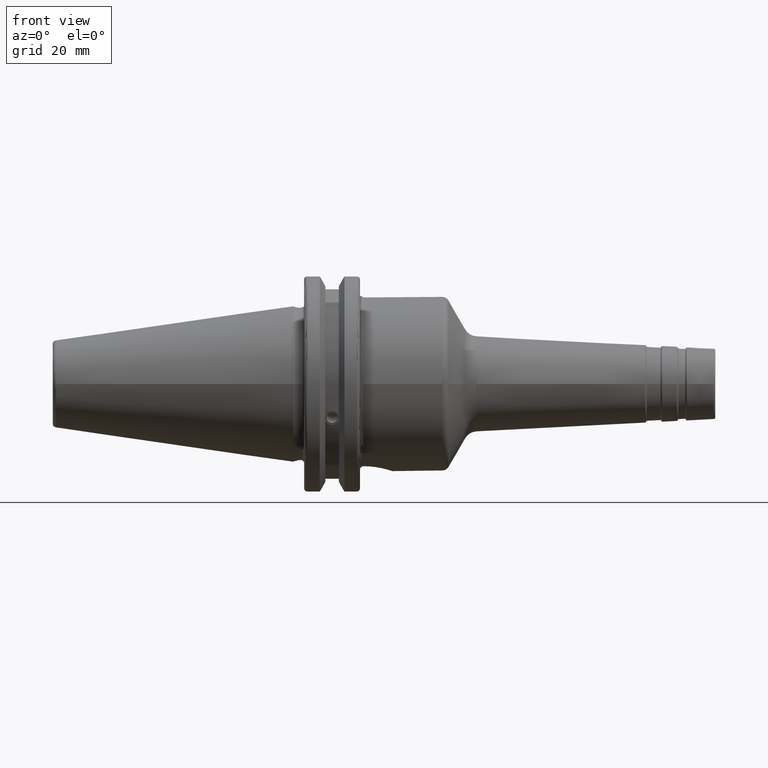
[diagram: clean part render]
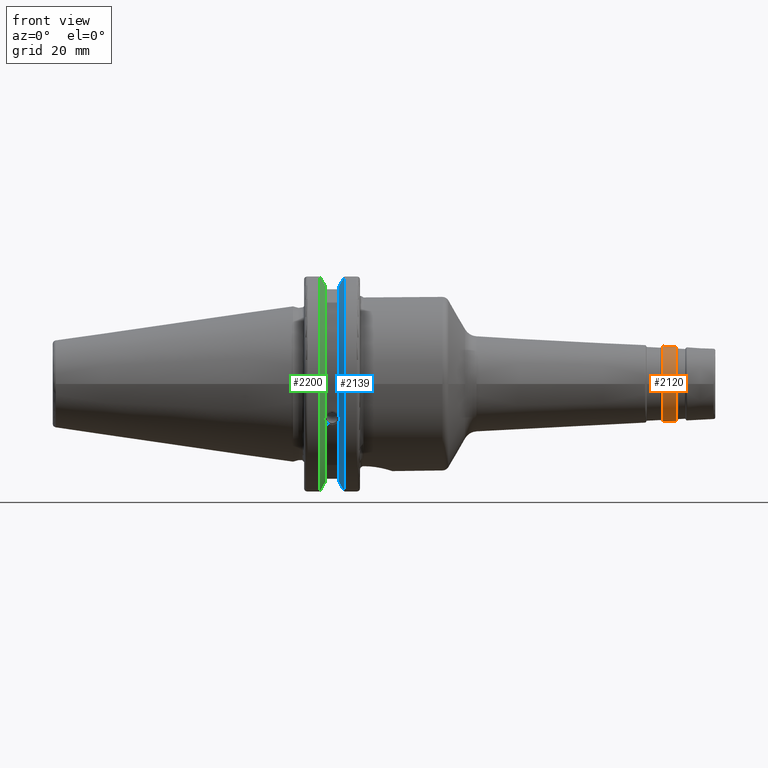
[diagram: same view with three faces highlighted in distinct colors, each labeled with its STEP entity id]
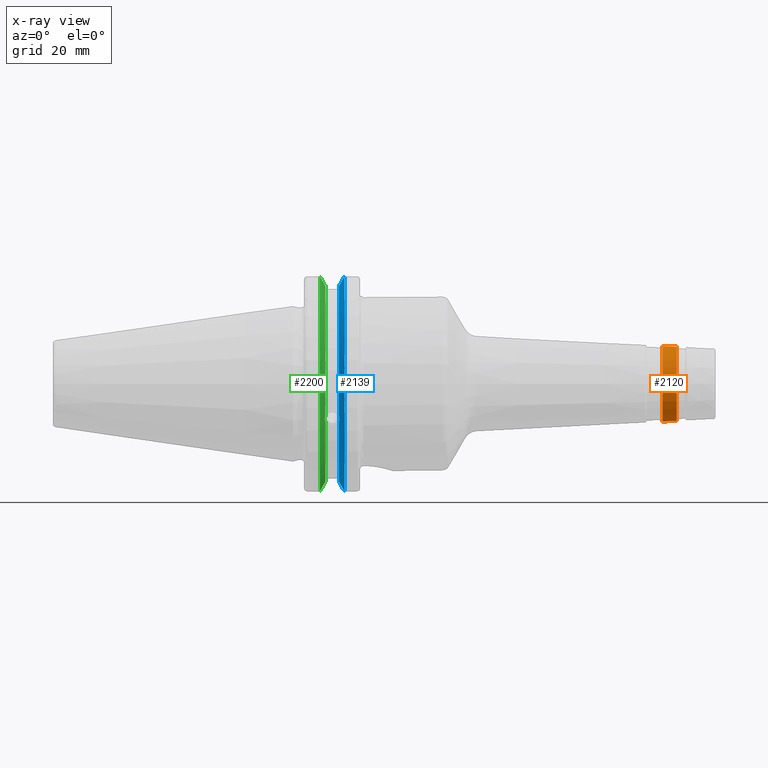
[diagram: x-ray of the same camera — body ghosted, the three highlighted faces saturated]
A machine part, front view with three faces highlighted in distinct colors.
The next image is the same camera in x-ray (body ghosted, the three faces saturated) — at least one of them is partly hidden behind the body in this view.
Their STEP definitions:

[orange] entity #2120 — the highlighted conical surface has half-angle 3 deg.
#209=FACE_OUTER_BOUND('',#320,.T.);
#320=EDGE_LOOP('',(#1571,#1572,#1573,#1574,#1575,#1576,#1577,#1578));
#431=LINE('',#3536,#532);
#532=VECTOR('',#2769,10.6796065213774);
#699=CIRCLE('',#2331,10.5759611913527);
#700=CIRCLE('',#2332,10.5759611913527);
#701=CIRCLE('',#2333,10.5759611913527);
#702=CIRCLE('',#2335,10.7832518514021);
#703=CIRCLE('',#2336,10.7832518514021);
#704=CIRCLE('',#2337,10.7832518514021);
#872=VERTEX_POINT('',#3527);
#873=VERTEX_POINT('',#3529);
#874=VERTEX_POINT('',#3531);
#875=VERTEX_POINT('',#3535);
#876=VERTEX_POINT('',#3537);
#877=VERTEX_POINT('',#3539);
#1141=EDGE_CURVE('',#872,#873,#699,.T.);
#1142=EDGE_CURVE('',#873,#874,#700,.T.);
#1143=EDGE_CURVE('',#874,#872,#701,.T.);
#1144=EDGE_CURVE('',#873,#875,#431,.T.);
#1145=EDGE_CURVE('',#876,#875,#702,.T.);
#1146=EDGE_CURVE('',#877,#876,#703,.T.);
#1147=EDGE_CURVE('',#875,#877,#704,.T.);
#1571=ORIENTED_EDGE('',*,*,#1143,.F.);
#1572=ORIENTED_EDGE('',*,*,#1142,.F.);
#1573=ORIENTED_EDGE('',*,*,#1144,.T.);
#1574=ORIENTED_EDGE('',*,*,#1145,.F.);
#1575=ORIENTED_EDGE('',*,*,#1146,.F.);
#1576=ORIENTED_EDGE('',*,*,#1147,.F.);
#1577=ORIENTED_EDGE('',*,*,#1144,.F.);
#1578=ORIENTED_EDGE('',*,*,#1141,.F.);
#2082=CONICAL_SURFACE('',#2334,10.6796065213774,0.0523598775598295);
#2120=ADVANCED_FACE('',(#209),#2082,.T.);
#2331=AXIS2_PLACEMENT_3D('',#3530,#2761,#2762);
#2332=AXIS2_PLACEMENT_3D('',#3532,#2763,#2764);
#2333=AXIS2_PLACEMENT_3D('',#3533,#2765,#2766);
#2334=AXIS2_PLACEMENT_3D('',#3534,#2767,#2768);
#2335=AXIS2_PLACEMENT_3D('',#3538,#2770,#2771);
#2336=AXIS2_PLACEMENT_3D('',#3540,#2772,#2773);
#2337=AXIS2_PLACEMENT_3D('',#3541,#2774,#2775);
#2761=DIRECTION('center_axis',(1.,0.,0.));
#2762=DIRECTION('ref_axis',(0.,-1.,3.06161699786838E-17));
#2763=DIRECTION('center_axis',(1.,0.,0.));
#2764=DIRECTION('ref_axis',(0.,-1.,3.06161699786838E-17));
#2765=DIRECTION('center_axis',(1.,0.,0.));
#2766=DIRECTION('ref_axis',(0.,-1.,3.06161699786838E-17));
#2767=DIRECTION('center_axis',(-1.,0.,0.));
#2768=DIRECTION('ref_axis',(0.,1.,0.));
#2769=DIRECTION('',(-0.998629534754574,-0.0523359562429434,-6.40930612932366E-18));
#2770=DIRECTION('center_axis',(-1.,0.,0.));
#2771=DIRECTION('ref_axis',(0.,-1.,3.06161699786838E-17));
#2772=DIRECTION('center_axis',(-1.,0.,0.));
#2773=DIRECTION('ref_axis',(0.,-1.,3.06161699786838E-17));
#2774=DIRECTION('center_axis',(-1.,0.,0.));
#2775=DIRECTION('ref_axis',(0.,-1.,3.06161699786838E-17));
#3527=CARTESIAN_POINT('',(109.010005780972,-1.29518170208967E-15,10.5759611913527));
#3529=CARTESIAN_POINT('',(109.010005780972,-10.5759611913527,-1.29518170208967E-15));
#3530=CARTESIAN_POINT('Origin',(109.010005780972,0.,-1.61897712761209E-15));
#3531=CARTESIAN_POINT('',(109.010005780972,10.5759611913527,-6.47590851044836E-16));
#3532=CARTESIAN_POINT('Origin',(109.010005780972,0.,-1.61897712761209E-15));
#3533=CARTESIAN_POINT('Origin',(109.010005780972,0.,-1.61897712761209E-15));
#3534=CARTESIAN_POINT('Origin',(107.032335071726,0.,0.));
#3535=CARTESIAN_POINT('',(105.05466436248,-10.7832518514021,-1.32056748642194E-15));
#3536=CARTESIAN_POINT('',(107.032335071726,-10.6796065213774,-1.30787459425581E-15));
#3537=CARTESIAN_POINT('',(105.05466436248,10.7832518514021,-3.30141871605485E-15));
#3538=CARTESIAN_POINT('Origin',(105.05466436248,0.,-1.65070935802742E-15));
#3539=CARTESIAN_POINT('',(105.05466436248,-1.32056748642194E-15,10.7832518514021));
#3540=CARTESIAN_POINT('Origin',(105.05466436248,0.,-1.65070935802742E-15));
#3541=CARTESIAN_POINT('Origin',(105.05466436248,0.,-1.65070935802742E-15));

[blue] entity #2139 — the highlighted conical surface has half-angle 60 deg.
#15=(
BOUNDED_CURVE()
B_SPLINE_CURVE(2,(#3750,#3751,#3752),.UNSPECIFIED.,.F.,.F.)
B_SPLINE_CURVE_WITH_KNOTS((3,3),(0.,0.276549142795512),.UNSPECIFIED.)
CURVE()
GEOMETRIC_REPRESENTATION_ITEM()
RATIONAL_B_SPLINE_CURVE((1.,1.00095203904184,1.00031614445102))
REPRESENTATION_ITEM('')
);
#16=(
BOUNDED_CURVE()
B_SPLINE_CURVE(2,(#3754,#3755,#3756),.UNSPECIFIED.,.F.,.F.)
B_SPLINE_CURVE_WITH_KNOTS((3,3),(0.,0.0639048713675663),.UNSPECIFIED.)
CURVE()
GEOMETRIC_REPRESENTATION_ITEM()
RATIONAL_B_SPLINE_CURVE((1.,1.00028444218286,1.00047644010578))
REPRESENTATION_ITEM('')
);
#17=(
BOUNDED_CURVE()
B_SPLINE_CURVE(2,(#3760,#3761,#3762),.UNSPECIFIED.,.F.,.F.)
B_SPLINE_CURVE_WITH_KNOTS((3,3),(0.329353533631206,0.393258405001023),
 .UNSPECIFIED.)
CURVE()
GEOMETRIC_REPRESENTATION_ITEM()
RATIONAL_B_SPLINE_CURVE((1.00047644010579,1.00028444218287,1.))
REPRESENTATION_ITEM('')
);
#18=(
BOUNDED_CURVE()
B_SPLINE_CURVE(2,(#3764,#3765,#3766),.UNSPECIFIED.,.F.,.F.)
B_SPLINE_CURVE_WITH_KNOTS((3,3),(0.0550586467393779,0.331607789535852),
 .UNSPECIFIED.)
CURVE()
GEOMETRIC_REPRESENTATION_ITEM()
RATIONAL_B_SPLINE_CURVE((1.00031614444922,1.00095203903643,1.))
REPRESENTATION_ITEM('')
);
#126=B_SPLINE_CURVE_WITH_KNOTS('',3,(#3652,#3653,#3654,#3655,#3656,#3657,
#3658,#3659),.UNSPECIFIED.,.F.,.F.,(4,2,2,4),(0.451995700189024,0.464547828547662,
0.504528771685167,0.544509714822672),.UNSPECIFIED.);
#130=B_SPLINE_CURVE_WITH_KNOTS('',3,(#3714,#3715,#3716,#3717,#3718,#3719,
#3720,#3721),.UNSPECIFIED.,.F.,.F.,(4,2,2,4),(0.544509714822672,0.584490657960177,
0.624471601097683,0.637023729456322),.UNSPECIFIED.);
#228=FACE_OUTER_BOUND('',#343,.T.);
#343=EDGE_LOOP('',(#1696,#1697,#1698,#1699,#1700,#1701,#1702,#1703,#1704));
#727=CIRCLE('',#2388,28.9593772964944);
#728=CIRCLE('',#2389,31.75);
#729=CIRCLE('',#2390,28.9593772964944);
#906=VERTEX_POINT('',#3649);
#907=VERTEX_POINT('',#3651);
#914=VERTEX_POINT('',#3712);
#923=VERTEX_POINT('',#3747);
#924=VERTEX_POINT('',#3749);
#925=VERTEX_POINT('',#3753);
#926=VERTEX_POINT('',#3757);
#927=VERTEX_POINT('',#3759);
#928=VERTEX_POINT('',#3763);
#1188=EDGE_CURVE('',#907,#906,#126,.T.);
#1196=EDGE_CURVE('',#906,#914,#130,.T.);
#1208=EDGE_CURVE('',#914,#923,#727,.T.);
#1209=EDGE_CURVE('',#923,#924,#15,.T.);
#1210=EDGE_CURVE('',#925,#924,#16,.T.);
#1211=EDGE_CURVE('',#926,#925,#728,.T.);
#1212=EDGE_CURVE('',#927,#926,#17,.T.);
#1213=EDGE_CURVE('',#927,#928,#18,.T.);
#1214=EDGE_CURVE('',#928,#907,#729,.T.);
#1696=ORIENTED_EDGE('',*,*,#1188,.T.);
#1697=ORIENTED_EDGE('',*,*,#1196,.T.);
#1698=ORIENTED_EDGE('',*,*,#1208,.T.);
#1699=ORIENTED_EDGE('',*,*,#1209,.T.);
#1700=ORIENTED_EDGE('',*,*,#1210,.F.);
#1701=ORIENTED_EDGE('',*,*,#1211,.F.);
#1702=ORIENTED_EDGE('',*,*,#1212,.F.);
#1703=ORIENTED_EDGE('',*,*,#1213,.T.);
#1704=ORIENTED_EDGE('',*,*,#1214,.T.);
#2084=CONICAL_SURFACE('',#2387,30.3546886482472,1.0471975511966);
#2139=ADVANCED_FACE('',(#228),#2084,.T.);
#2387=AXIS2_PLACEMENT_3D('',#3746,#2895,#2896);
#2388=AXIS2_PLACEMENT_3D('',#3748,#2897,#2898);
#2389=AXIS2_PLACEMENT_3D('',#3758,#2899,#2900);
#2390=AXIS2_PLACEMENT_3D('',#3767,#2901,#2902);
#2895=DIRECTION('center_axis',(1.,0.,0.));
#2896=DIRECTION('ref_axis',(0.,-1.,-1.22464679914735E-16));
#2897=DIRECTION('center_axis',(1.,0.,0.));
#2898=DIRECTION('ref_axis',(0.,0.,-1.));
#2899=DIRECTION('center_axis',(1.,0.,0.));
#2900=DIRECTION('ref_axis',(0.,0.,-1.));
#2901=DIRECTION('center_axis',(1.,0.,0.));
#2902=DIRECTION('ref_axis',(0.,0.,-1.));
#3649=CARTESIAN_POINT('',(13.2341,-27.51401829017,-10.0142836826778));
#3651=CARTESIAN_POINT('',(13.0491,-27.4956274489925,-9.09043478536245));
#3652=CARTESIAN_POINT('Ctrl Pts',(13.0491,-27.4956274489925,-9.09043478536245));
#3653=CARTESIAN_POINT('Ctrl Pts',(13.0632204071996,-27.5087667900418,-9.12860597076217));
#3654=CARTESIAN_POINT('Ctrl Pts',(13.0766929817857,-27.5206055003513,-9.16696618806877));
#3655=CARTESIAN_POINT('Ctrl Pts',(13.130081441159,-27.5642934663232,-9.32791534028656));
#3656=CARTESIAN_POINT('Ctrl Pts',(13.1682197084175,-27.5867382255984,-9.46717946402648));
#3657=CARTESIAN_POINT('Ctrl Pts',(13.2204106446058,-27.5847569104122,-9.74771639360671));
#3658=CARTESIAN_POINT('Ctrl Pts',(13.2341,-27.559599249844,-9.8890510252165));
#3659=CARTESIAN_POINT('Ctrl Pts',(13.2341,-27.51401829017,-10.0142836826777));
#3712=CARTESIAN_POINT('',(13.0491,-26.9060914640648,-10.7101715919071));
#3714=CARTESIAN_POINT('Ctrl Pts',(13.2341,-27.51401829017,-10.0142836826777));
#3715=CARTESIAN_POINT('Ctrl Pts',(13.2341,-27.4684373304961,-10.139516340139));
#3716=CARTESIAN_POINT('Ctrl Pts',(13.2204106446058,-27.3968610665578,-10.2639559818059));
#3717=CARTESIAN_POINT('Ctrl Pts',(13.1682197084175,-27.2180531796526,-10.4801333026531));
#3718=CARTESIAN_POINT('Ctrl Pts',(13.130081441159,-27.1113422433189,-10.5723885976054));
#3719=CARTESIAN_POINT('Ctrl Pts',(13.0766929817857,-26.9744191989197,-10.6676007180673));
#3720=CARTESIAN_POINT('Ctrl Pts',(13.0632204071996,-26.9406927482839,-10.6893765730703));
#3721=CARTESIAN_POINT('Ctrl Pts',(13.0491,-26.9060914640648,-10.7101715919071));
#3746=CARTESIAN_POINT('Origin',(13.8546833845378,0.,0.));
#3747=CARTESIAN_POINT('',(13.0491,-8.19,-27.7771386827498));
#3748=CARTESIAN_POINT('Origin',(13.0491,0.,0.));
#3749=CARTESIAN_POINT('',(14.3815146964874,-8.19,-30.1755016258903));
#3750=CARTESIAN_POINT('Ctrl Pts',(13.0491,-8.19,-27.7771386827498));
#3751=CARTESIAN_POINT('Ctrl Pts',(13.68773643849,-8.19,-28.9303689539956));
#3752=CARTESIAN_POINT('Ctrl Pts',(14.3815146964874,-8.19,-30.1755016258903));
#3753=CARTESIAN_POINT('',(14.6602667690756,-8.67204822802686,-30.5427254764662));
#3754=CARTESIAN_POINT('Ctrl Pts',(14.6602667690756,-8.67204822802687,-30.5427254764662));
#3755=CARTESIAN_POINT('Ctrl Pts',(14.5192085187837,-8.42917748262644,-30.357706789263));
#3756=CARTESIAN_POINT('Ctrl Pts',(14.3815146964874,-8.19,-30.1755016258903));
#3757=CARTESIAN_POINT('',(14.6602667690756,-8.67204822802685,30.5427254764662));
#3758=CARTESIAN_POINT('Origin',(14.6602667690756,0.,0.));
#3759=CARTESIAN_POINT('',(14.3815146964874,-8.19,30.1755016258903));
#3760=CARTESIAN_POINT('Ctrl Pts',(14.3815146964874,-8.19,30.1755016258903));
#3761=CARTESIAN_POINT('Ctrl Pts',(14.5192085187884,-8.42917748263465,30.3577067892692));
#3762=CARTESIAN_POINT('Ctrl Pts',(14.6602667690756,-8.67204822802686,30.5427254764662));
#3763=CARTESIAN_POINT('',(13.0491,-8.19,27.7771386827498));
#3764=CARTESIAN_POINT('Ctrl Pts',(14.3815146964874,-8.19,30.1755016258903));
#3765=CARTESIAN_POINT('Ctrl Pts',(13.687736438474,-8.19,28.9303689539668));
#3766=CARTESIAN_POINT('Ctrl Pts',(13.0491,-8.19,27.7771386827498));
#3767=CARTESIAN_POINT('Origin',(13.0491,0.,0.));

[green] entity #2200 — the highlighted conical surface has half-angle 60 deg.
#25=(
BOUNDED_CURVE()
B_SPLINE_CURVE(2,(#4089,#4090,#4091),.UNSPECIFIED.,.F.,.F.)
B_SPLINE_CURVE_WITH_KNOTS((3,3),(0.,0.276549142796136),.UNSPECIFIED.)
CURVE()
GEOMETRIC_REPRESENTATION_ITEM()
RATIONAL_B_SPLINE_CURVE((1.,1.00095203903316,1.00031614444813))
REPRESENTATION_ITEM('')
);
#26=(
BOUNDED_CURVE()
B_SPLINE_CURVE(2,(#4101,#4102,#4103),.UNSPECIFIED.,.F.,.F.)
B_SPLINE_CURVE_WITH_KNOTS((3,3),(0.0550586467392022,0.33160778953585),
 .UNSPECIFIED.)
CURVE()
GEOMETRIC_REPRESENTATION_ITEM()
RATIONAL_B_SPLINE_CURVE((1.00031614445148,1.00095203904325,1.))
REPRESENTATION_ITEM('')
);
#27=(
BOUNDED_CURVE()
B_SPLINE_CURVE(2,(#4136,#4137,#4138),.UNSPECIFIED.,.F.,.F.)
B_SPLINE_CURVE_WITH_KNOTS((3,3),(0.,0.0639048713676282),.UNSPECIFIED.)
CURVE()
GEOMETRIC_REPRESENTATION_ITEM()
RATIONAL_B_SPLINE_CURVE((1.,1.00028444218284,1.00047644010574))
REPRESENTATION_ITEM('')
);
#28=(
BOUNDED_CURVE()
B_SPLINE_CURVE(2,(#4144,#4145,#4146),.UNSPECIFIED.,.F.,.F.)
B_SPLINE_CURVE_WITH_KNOTS((3,3),(0.329353533631205,0.393258405001025),
 .UNSPECIFIED.)
CURVE()
GEOMETRIC_REPRESENTATION_ITEM()
RATIONAL_B_SPLINE_CURVE((1.00047644010572,1.00028444218283,1.))
REPRESENTATION_ITEM('')
);
#128=B_SPLINE_CURVE_WITH_KNOTS('',3,(#3680,#3681,#3682,#3683,#3684,#3685,
#3686,#3687,#3688,#3689,#3690,#3691,#3692,#3693),.UNSPECIFIED.,.F.,.F.,
(4,2,2,2,2,2,4),(0.451995700189024,0.464547828547662,0.504528771685167,
0.544509714822672,0.584490657960178,0.624471601097683,0.63702372945632),
 .UNSPECIFIED.);
#289=FACE_OUTER_BOUND('',#412,.T.);
#412=EDGE_LOOP('',(#2059,#2060,#2061,#2062,#2063,#2064,#2065,#2066));
#732=CIRCLE('',#2396,28.9593772964944);
#765=CIRCLE('',#2465,31.75);
#791=CIRCLE('',#2522,28.9593772964944);
#910=VERTEX_POINT('',#3677);
#911=VERTEX_POINT('',#3679);
#931=VERTEX_POINT('',#3777);
#1000=VERTEX_POINT('',#4086);
#1001=VERTEX_POINT('',#4088);
#1004=VERTEX_POINT('',#4100);
#1008=VERTEX_POINT('',#4134);
#1009=VERTEX_POINT('',#4140);
#1192=EDGE_CURVE('',#911,#910,#128,.T.);
#1219=EDGE_CURVE('',#911,#931,#732,.T.);
#1313=EDGE_CURVE('',#1001,#1000,#25,.T.);
#1319=EDGE_CURVE('',#1004,#931,#26,.T.);
#1327=EDGE_CURVE('',#1008,#1000,#27,.T.);
#1329=EDGE_CURVE('',#1008,#1009,#765,.T.);
#1330=EDGE_CURVE('',#1004,#1009,#28,.T.);
#1380=EDGE_CURVE('',#1001,#910,#791,.T.);
#2059=ORIENTED_EDGE('',*,*,#1192,.T.);
#2060=ORIENTED_EDGE('',*,*,#1380,.F.);
#2061=ORIENTED_EDGE('',*,*,#1313,.T.);
#2062=ORIENTED_EDGE('',*,*,#1327,.F.);
#2063=ORIENTED_EDGE('',*,*,#1329,.T.);
#2064=ORIENTED_EDGE('',*,*,#1330,.F.);
#2065=ORIENTED_EDGE('',*,*,#1319,.T.);
#2066=ORIENTED_EDGE('',*,*,#1219,.F.);
#2093=CONICAL_SURFACE('',#2521,30.3546886482472,1.0471975511966);
#2200=ADVANCED_FACE('',(#289),#2093,.T.);
#2396=AXIS2_PLACEMENT_3D('',#3778,#2915,#2916);
#2465=AXIS2_PLACEMENT_3D('',#4142,#3094,#3095);
#2521=AXIS2_PLACEMENT_3D('',#4274,#3225,#3226);
#2522=AXIS2_PLACEMENT_3D('',#4275,#3227,#3228);
#2915=DIRECTION('center_axis',(1.,0.,0.));
#2916=DIRECTION('ref_axis',(0.,0.,-1.));
#3094=DIRECTION('center_axis',(1.,0.,0.));
#3095=DIRECTION('ref_axis',(0.,0.,-1.));
#3225=DIRECTION('center_axis',(-1.,0.,0.));
#3226=DIRECTION('ref_axis',(0.,-1.,-1.22464679914735E-16));
#3227=DIRECTION('center_axis',(1.,0.,0.));
#3228=DIRECTION('ref_axis',(0.,0.,-1.));
#3677=CARTESIAN_POINT('',(9.2191,-27.4956274489925,-9.09043478536245));
#3679=CARTESIAN_POINT('',(9.2191,-26.9060914640648,-10.7101715919071));
#3680=CARTESIAN_POINT('Ctrl Pts',(9.2191,-26.9060914640648,-10.7101715919071));
#3681=CARTESIAN_POINT('Ctrl Pts',(9.20497959280038,-26.9406927482839,-10.6893765730703));
#3682=CARTESIAN_POINT('Ctrl Pts',(9.19150701821434,-26.9744191989197,-10.6676007180673));
#3683=CARTESIAN_POINT('Ctrl Pts',(9.13811855884095,-27.1113422433189,-10.5723885976054));
#3684=CARTESIAN_POINT('Ctrl Pts',(9.09998029158246,-27.2180531796526,-10.4801333026531));
#3685=CARTESIAN_POINT('Ctrl Pts',(9.04778935539424,-27.3968610665578,-10.2639559818059));
#3686=CARTESIAN_POINT('Ctrl Pts',(9.0341,-27.4684373304961,-10.139516340139));
#3687=CARTESIAN_POINT('Ctrl Pts',(9.0341,-27.559599249844,-9.8890510252165));
#3688=CARTESIAN_POINT('Ctrl Pts',(9.04778935539424,-27.5847569104122,-9.74771639360671));
#3689=CARTESIAN_POINT('Ctrl Pts',(9.09998029158246,-27.5867382255984,-9.46717946402648));
#3690=CARTESIAN_POINT('Ctrl Pts',(9.13811855884095,-27.5642934663232,-9.32791534028656));
#3691=CARTESIAN_POINT('Ctrl Pts',(9.19150701821434,-27.5206055003512,-9.16696618806877));
#3692=CARTESIAN_POINT('Ctrl Pts',(9.20497959280038,-27.5087667900418,-9.12860597076218));
#3693=CARTESIAN_POINT('Ctrl Pts',(9.2191,-27.4956274489925,-9.09043478536245));
#3777=CARTESIAN_POINT('',(9.2191,-8.19,-27.7771386827498));
#3778=CARTESIAN_POINT('Origin',(9.2191,0.,0.));
#4086=CARTESIAN_POINT('',(7.88668530351257,-8.19,30.1755016258903));
#4088=CARTESIAN_POINT('',(9.2191,-8.19,27.7771386827498));
#4089=CARTESIAN_POINT('Ctrl Pts',(9.2191,-8.19,27.7771386827498));
#4090=CARTESIAN_POINT('Ctrl Pts',(8.58046356152393,-8.19,28.9303689539705));
#4091=CARTESIAN_POINT('Ctrl Pts',(7.88668530351257,-8.19,30.1755016258903));
#4100=CARTESIAN_POINT('',(7.88668530351256,-8.19,-30.1755016258903));
#4101=CARTESIAN_POINT('Ctrl Pts',(7.88668530351256,-8.19,-30.1755016258903));
#4102=CARTESIAN_POINT('Ctrl Pts',(8.5804635615235,-8.19,-28.9303689539712));
#4103=CARTESIAN_POINT('Ctrl Pts',(9.2191,-8.19,-27.7771386827498));
#4134=CARTESIAN_POINT('',(7.60793323092436,-8.67204822802685,30.5427254764662));
#4136=CARTESIAN_POINT('Ctrl Pts',(7.60793323092436,-8.67204822802686,30.5427254764662));
#4137=CARTESIAN_POINT('Ctrl Pts',(7.74899148121626,-8.42917748262648,30.357706789263));
#4138=CARTESIAN_POINT('Ctrl Pts',(7.88668530351257,-8.19,30.1755016258903));
#4140=CARTESIAN_POINT('',(7.60793323092436,-8.67204822802685,-30.5427254764662));
#4142=CARTESIAN_POINT('Origin',(7.60793323092436,0.,0.));
#4144=CARTESIAN_POINT('Ctrl Pts',(7.88668530351256,-8.19,-30.1755016258903));
#4145=CARTESIAN_POINT('Ctrl Pts',(7.74899148121159,-8.42917748263467,-30.3577067892692));
#4146=CARTESIAN_POINT('Ctrl Pts',(7.60793323092435,-8.67204822802687,-30.5427254764662));
#4274=CARTESIAN_POINT('Origin',(8.41351661546218,0.,0.));
#4275=CARTESIAN_POINT('Origin',(9.2191,0.,0.));